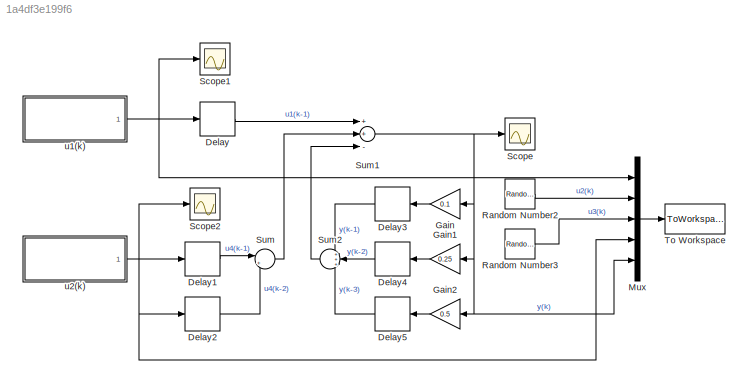
MODEL slx_1a4df3e199f6
KIND model
CONFIG AbsTol = auto
CONFIG EnableMultiTasking = off
CONFIG FixedStep = auto
CONFIG MaxStep = auto
CONFIG MinStep = auto
CONFIG RelTol = 1e-3
CONFIG SampleTimeConstraint = Unconstrained
CONFIG Solver = VariableStepAuto
CONFIG SolverName = VariableStepAuto
CONFIG StartTime = 0.0
CONFIG StopTime = 10000
BLOCK [Delay] Delay
  DelayLength = 1
  InputPortMap = u0
  Ports = [1, 1]
BLOCK [Delay] Delay1
  DelayLength = 1
  InputPortMap = u0
  Ports = [1, 1]
BLOCK [Delay] Delay2
  InputPortMap = u0
  Ports = [1, 1]
BLOCK [Delay] Delay3
  DelayLength = 1
  InputPortMap = u0
  Ports = [1, 1]
BLOCK [Delay] Delay4
  InputPortMap = u0
  Ports = [1, 1]
BLOCK [Delay] Delay5
  DelayLength = 3
  InputPortMap = u0
  Ports = [1, 1]
BLOCK [Gain] Gain
  Gain = 0.1
  OutDataTypeStr = Inherit: Inherit via internal rule
  ParamDataTypeStr = Inherit: Inherit via internal rule
  SaturateOnIntegerOverflow = off
BLOCK [Gain] Gain1
  Gain = 0.25
  OutDataTypeStr = Inherit: Inherit via internal rule
  ParamDataTypeStr = Inherit: Inherit via internal rule
  SaturateOnIntegerOverflow = off
BLOCK [Gain] Gain2
  Gain = 0.5
  OutDataTypeStr = Inherit: Inherit via internal rule
  ParamDataTypeStr = Inherit: Inherit via internal rule
  SaturateOnIntegerOverflow = off
BLOCK [Mux] Mux
  DisplayOption = bar
  Inputs = 5
  Ports = [5, 1]
BLOCK [RandomNumber] Random Number2
  Mean = 1
  SampleTime = 50
  Seed = 42
BLOCK [RandomNumber] Random Number3
  Mean = 5
  SampleTime = 200
  Seed = 3
  Variance = 2
BLOCK [Scope] Scope
  Floating = off
  NumInputPorts = 1
  Ports = [1]
  ScopeSpecificationString = Simulink.scopes.TimeScopeBlockCfg('CurrentConfiguration', extmgr.ConfigurationSet(extmgr.Configuration('Core','General UI',true),extmgr.Configuration('Core','Source UI',true),extmgr.Configuration('Sources','WiredSimulink',true),extmgr.Configuration('Visuals','Time Domain',true,'SerializedDisplays',{struct('MinYLimReal','-3.05409','MaxYLimReal','27.48683','YLabelReal','','MinYLimMag','0.00000','Max...<+1401ch>
BLOCK [Scope] Scope1
  Floating = off
  NumInputPorts = 1
  Ports = [1]
  ScopeSpecificationString = Simulink.scopes.TimeScopeBlockCfg('CurrentConfiguration', extmgr.ConfigurationSet(extmgr.Configuration('Core','General UI',true),extmgr.Configuration('Core','Source UI',true),extmgr.Configuration('Sources','WiredSimulink',true,'DataLoggingVariableName','ScopeData1'),extmgr.Configuration('Visuals','Time Domain',true,'SerializedDisplays',{struct('MinYLimReal','11.86274','MaxYLimReal','26.19646','YLa...<+1453ch>
BLOCK [Scope] Scope2
  Floating = off
  NumInputPorts = 1
  Ports = [1]
  ScopeSpecificationString = Simulink.scopes.TimeScopeBlockCfg('CurrentConfiguration', extmgr.ConfigurationSet(extmgr.Configuration('Core','General UI',true),extmgr.Configuration('Core','Source UI',true),extmgr.Configuration('Sources','WiredSimulink',true,'DataLoggingVariableName','ScopeData2'),extmgr.Configuration('Visuals','Time Domain',true,'SerializedDisplays',{struct('MinYLimReal','-1.20859','MaxYLimReal','11.40064','YLa...<+1452ch>
BLOCK [Sum] Sum
  IconShape = round
  InputSameDT = off
  Inputs = |++
  OutDataTypeStr = Inherit: Inherit via internal rule
  Ports = [2, 1]
  SaturateOnIntegerOverflow = off
BLOCK [Sum] Sum1
  InputSameDT = off
  Inputs = ++-
  OutDataTypeStr = Inherit: Inherit via internal rule
  Ports = [3, 1]
  SaturateOnIntegerOverflow = off
BLOCK [Sum] Sum2
  IconShape = round
  InputSameDT = off
  Inputs = +++
  OutDataTypeStr = Inherit: Inherit via internal rule
  Ports = [3, 1]
  SaturateOnIntegerOverflow = off
BLOCK [ToWorkspace] To Workspace
  FixptAsFi = on
  MaxDataPoints = inf
  Ports = [1]
  SampleTime = -1
  Save2DSignal = 3-D array (concatenate along third dimension)
  VariableName = simout
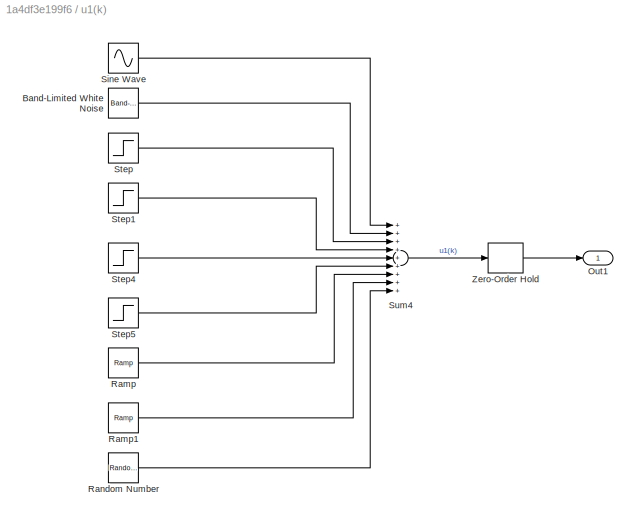
BLOCK [SubSystem] u1(k)
  Ports = [0, 1]
  RequestExecContextInheritance = off
BLOCK [Reference] u1(k)/Band-Limited White Noise  REF=simulink/Sources/Band-Limited
White Noise
  Ports = [0, 1]
  SourceBlock = simulink/Sources/Band-Limited\nWhite Noise
  SourceProductBaseCode = SL
  SourceProductName = Simulink
  SourceType = Band-Limited White Noise.
BLOCK [Outport] u1(k)/Out1
  IconDisplay = Port number
BLOCK [Reference] u1(k)/Ramp  REF=simulink/Sources/Ramp
  Ports = [0, 1]
  SourceBlock = simulink/Sources/Ramp
  SourceProductBaseCode = SL
  SourceProductName = Simulink
  SourceType = Ramp
BLOCK [Reference] u1(k)/Ramp1  REF=simulink/Sources/Ramp
  Ports = [0, 1]
  SourceBlock = simulink/Sources/Ramp
  SourceProductBaseCode = SL
  SourceProductName = Simulink
  SourceType = Ramp
BLOCK [RandomNumber] u1(k)/Random Number
  Mean = 1
  SampleTime = 250
  Seed = 25
  Variance = 0.005
BLOCK [Sin] u1(k)/Sine Wave
  Amplitude = 0.2
  Ports = [0, 1]
  SampleTime = 1
  Samples = 1000
  SineType = Sample based
BLOCK [Step] u1(k)/Step
  After = 5
  SampleTime = 1
  Time = 200
BLOCK [Step] u1(k)/Step1
  After = 5
  SampleTime = 1
  Time = 5000
BLOCK [Step] u1(k)/Step4
  After = 10
  SampleTime = 1
  Time = 2000
BLOCK [Step] u1(k)/Step5
  After = -3
  SampleTime = 1
  Time = 8000
BLOCK [Sum] u1(k)/Sum4
  InputSameDT = off
  Inputs = +++++++++
  OutDataTypeStr = Inherit: Inherit via internal rule
  Ports = [9, 1]
  SaturateOnIntegerOverflow = off
BLOCK [ZeroOrderHold] u1(k)/Zero-Order Hold
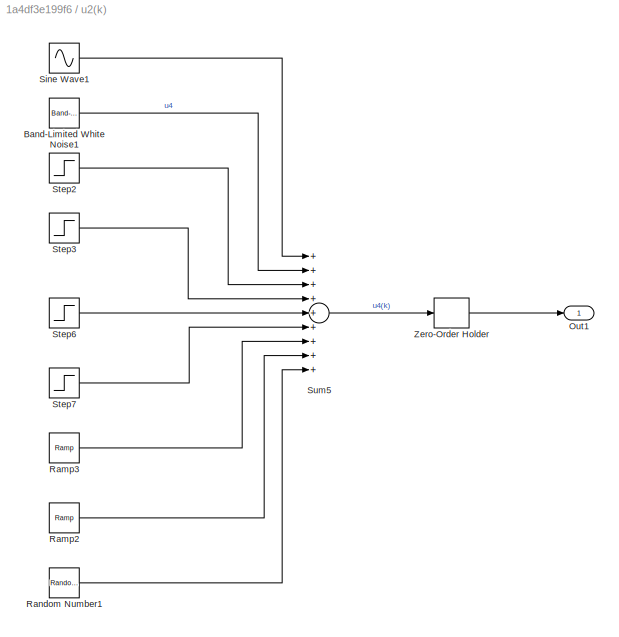
BLOCK [SubSystem] u2(k)
  Ports = [0, 1]
  RequestExecContextInheritance = off
BLOCK [Reference] u2(k)/Band-Limited White Noise1  REF=simulink/Sources/Band-Limited
White Noise
  Ports = [0, 1]
  SourceBlock = simulink/Sources/Band-Limited\nWhite Noise
  SourceProductBaseCode = SL
  SourceProductName = Simulink
  SourceType = Band-Limited White Noise.
BLOCK [Outport] u2(k)/Out1
  IconDisplay = Port number
BLOCK [Reference] u2(k)/Ramp2  REF=simulink/Sources/Ramp
  Ports = [0, 1]
  SourceBlock = simulink/Sources/Ramp
  SourceProductBaseCode = SL
  SourceProductName = Simulink
  SourceType = Ramp
BLOCK [Reference] u2(k)/Ramp3  REF=simulink/Sources/Ramp
  Ports = [0, 1]
  SourceBlock = simulink/Sources/Ramp
  SourceProductBaseCode = SL
  SourceProductName = Simulink
  SourceType = Ramp
BLOCK [RandomNumber] u2(k)/Random Number1
  Mean = 0.5
  SampleTime = 300
  Seed = 58
  Variance = 0.03
BLOCK [Sin] u2(k)/Sine Wave1
  Amplitude = 0.1
  Offset = 100
  Ports = [0, 1]
  SampleTime = 1
  Samples = 700
  SineType = Sample based
BLOCK [Step] u2(k)/Step2
  After = -2
  SampleTime = 1
  Time = 3600
BLOCK [Step] u2(k)/Step3
  After = 7
  SampleTime = 1
  Time = 8000
BLOCK [Step] u2(k)/Step6
  After = 3
  SampleTime = 1
  Time = 100
BLOCK [Step] u2(k)/Step7
  After = -1
  SampleTime = 1
  Time = 5000
BLOCK [Sum] u2(k)/Sum5
  InputSameDT = off
  Inputs = +++++++++
  OutDataTypeStr = Inherit: Inherit via internal rule
  Ports = [9, 1]
  SaturateOnIntegerOverflow = off
BLOCK [ZeroOrderHold] u2(k)/Zero-Order Holder
LINE Delay1:1 -> Sum:1
LINE Delay2:1 -> Sum:2
LINE Delay3:1 -> Sum2:1
LINE Delay4:1 -> Sum2:2
LINE Delay5:1 -> Sum2:3
LINE Delay:1 -> Sum1:1
LINE Gain1:1 -> Delay4:1
LINE Gain2:1 -> Delay5:1
LINE Gain:1 -> Delay3:1
LINE Mux:1 -> To Workspace:1
LINE Random Number2:1 -> Mux:2
LINE Random Number3:1 -> Mux:3
NET Sum1:1 -> Gain1:1, Gain2:1, Gain:1, Mux:5, Scope:1
LINE Sum2:1 -> Sum1:3
LINE Sum:1 -> Sum1:2
LINE u1(k)/Band-Limited White Noise:1 -> u1(k)/Sum4:2
LINE u1(k)/Ramp1:1 -> u1(k)/Sum4:8
LINE u1(k)/Ramp:1 -> u1(k)/Sum4:7
LINE u1(k)/Random Number:1 -> u1(k)/Sum4:9
LINE u1(k)/Sine Wave:1 -> u1(k)/Sum4:1
LINE u1(k)/Step1:1 -> u1(k)/Sum4:4
LINE u1(k)/Step4:1 -> u1(k)/Sum4:5
LINE u1(k)/Step5:1 -> u1(k)/Sum4:6
LINE u1(k)/Step:1 -> u1(k)/Sum4:3
LINE u1(k)/Sum4:1 -> u1(k)/Zero-Order Hold:1
LINE u1(k)/Zero-Order Hold:1 -> u1(k)/Out1:1
NET u1(k):1 -> Delay:1, Mux:1, Scope1:1
LINE u2(k)/Band-Limited White Noise1:1 -> u2(k)/Sum5:2
LINE u2(k)/Ramp2:1 -> u2(k)/Sum5:8
LINE u2(k)/Ramp3:1 -> u2(k)/Sum5:7
LINE u2(k)/Random Number1:1 -> u2(k)/Sum5:9
LINE u2(k)/Sine Wave1:1 -> u2(k)/Sum5:1
LINE u2(k)/Step2:1 -> u2(k)/Sum5:3
LINE u2(k)/Step3:1 -> u2(k)/Sum5:4
LINE u2(k)/Step6:1 -> u2(k)/Sum5:5
LINE u2(k)/Step7:1 -> u2(k)/Sum5:6
LINE u2(k)/Sum5:1 -> u2(k)/Zero-Order Holder:1
LINE u2(k)/Zero-Order Holder:1 -> u2(k)/Out1:1
NET u2(k):1 -> Delay1:1, Delay2:1, Mux:4, Scope2:1
note: NET lines group one-source signal fan-out (src -> all destinations, sorted); 1:1 wires keep LINE
